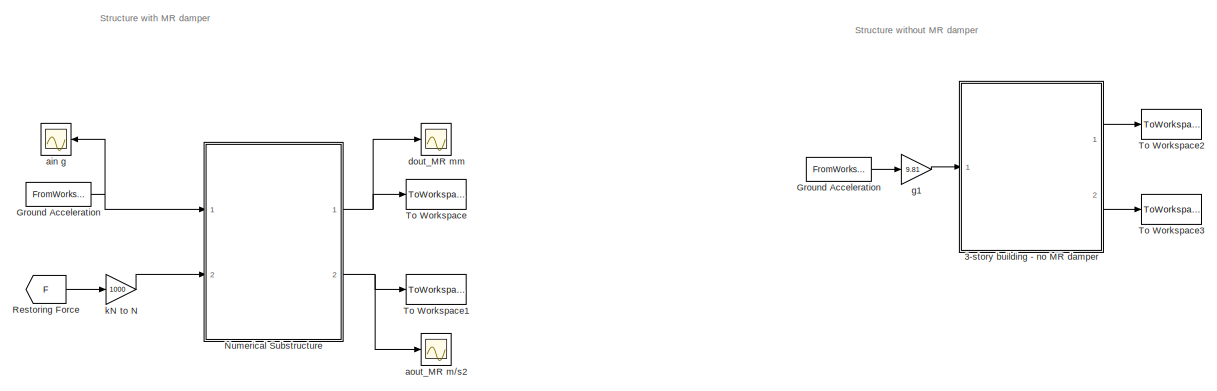
[diagram: root canvas - part 1/2, full width, middle band]
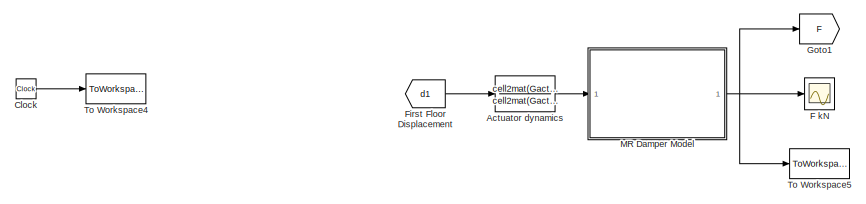
[diagram: root canvas - part 2/2, bottom left region]
MODEL slx_c075b33c874c
KIND model
CONFIG AbsTol = auto
CONFIG EnableMultiTasking = off
CONFIG FixedStep = dt
CONFIG MaxStep = auto
CONFIG MinStep = auto
CONFIG RelTol = 1e-5
CONFIG SampleTimeConstraint = Unconstrained
CONFIG Solver = ode8
CONFIG SolverName = ode8
CONFIG StartTime = 0.0
CONFIG StopTime = 20
BLOCK [FromWorkspace]  Ground Acceleration
  SampleTime = 1/200
  VariableName = gmotion
  ZeroCross = on
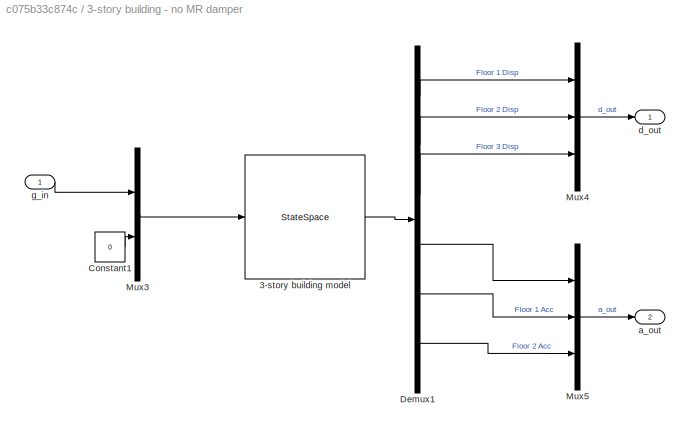
BLOCK [SubSystem] 3-story building - no MR damper
  Ports = [1, 2]
  RequestExecContextInheritance = off
BLOCK [StateSpace] 3-story building - no MR damper/ 3-story building model
  A = bdg.A
  B = bdg.B
  C = bdg.C
  D = bdg.D
  InitialCondition = 0
  Ports = [1, 1]
BLOCK [Constant] 3-story building - no MR damper/Constant1
  Value = 0
BLOCK [Demux] 3-story building - no MR damper/Demux1
  DisplayOption = bar
  Outputs = 6
  Ports = [1, 6]
BLOCK [Mux] 3-story building - no MR damper/Mux3
  DisplayOption = bar
  Inputs = 2
  Ports = [2, 1]
BLOCK [Mux] 3-story building - no MR damper/Mux4
  DisplayOption = bar
  Inputs = 3
  Ports = [3, 1]
BLOCK [Mux] 3-story building - no MR damper/Mux5
  DisplayOption = bar
  Inputs = 3
  Ports = [3, 1]
BLOCK [Outport] 3-story building - no MR damper/a_out
  IconDisplay = Port number
  Port = 2
BLOCK [Outport] 3-story building - no MR damper/d_out
  IconDisplay = Port number
BLOCK [Inport] 3-story building - no MR damper/g_in
  IconDisplay = Port number
BLOCK [TransferFcn] Actuator dynamics
  Denominator = cell2mat(Gact.denominator)
  Numerator = cell2mat(Gact.numerator)
BLOCK [Clock] Clock
BLOCK [Scope] F kN
  Floating = off
  NumInputPorts = 1
  Ports = [1]
  ScopeSpecificationString = Simulink.scopes.TimeScopeBlockCfg('CurrentConfiguration', extmgr.ConfigurationSet(extmgr.Configuration('Core','General UI',true),extmgr.Configuration('Core','Source UI',true),extmgr.Configuration('Sources','WiredSimulink',true),extmgr.Configuration('Visuals','Time Domain',true,'SerializedDisplays',{struct('MinYLimReal','-155.95182','MaxYLimReal','153.81082','YLabelReal','','MinYLimMag',' 0.00000',...<+1412ch>
BLOCK [From] First Floor Displacement
  GotoTag = d1
BLOCK [Goto] Goto1
  GotoTag = F
BLOCK [FromWorkspace] Ground Acceleration
  SampleTime = 1/200
  VariableName = gmotion
  ZeroCross = on
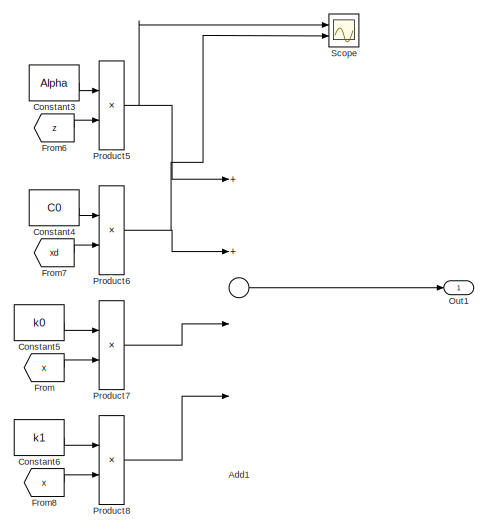
[diagram: MR Damper Model - part 1/2, right side, full height]
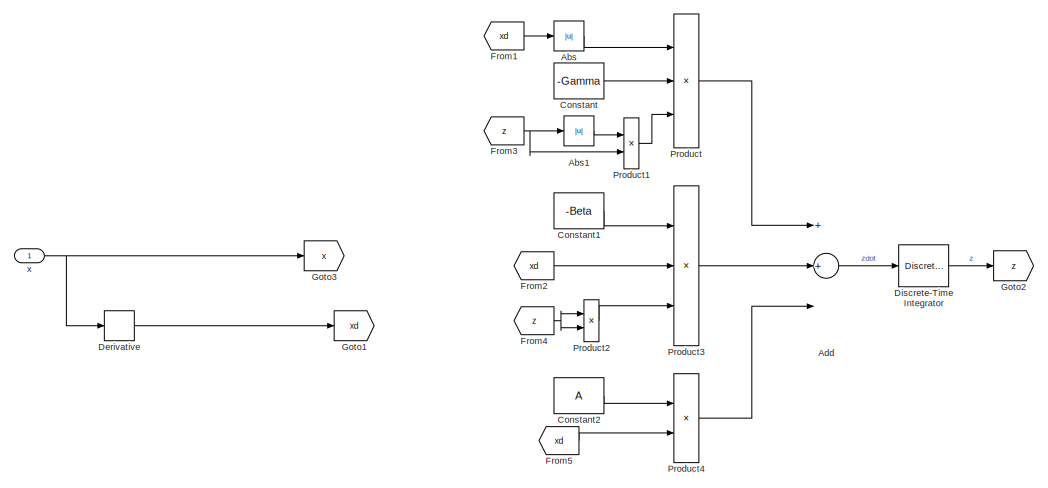
[diagram: MR Damper Model - part 2/2, left side, full height]
BLOCK [SubSystem] MR Damper Model
  Ports = [1, 1]
  RequestExecContextInheritance = off
BLOCK [Abs] MR Damper Model/Abs
  SaturateOnIntegerOverflow = off
BLOCK [Abs] MR Damper Model/Abs1
  SaturateOnIntegerOverflow = off
BLOCK [Sum] MR Damper Model/Add
  InputSameDT = off
  Inputs = 3
  OutDataTypeStr = Inherit: Inherit via internal rule
  Ports = [3, 1]
  SaturateOnIntegerOverflow = off
BLOCK [Sum] MR Damper Model/Add1
  InputSameDT = off
  Inputs = 4
  OutDataTypeStr = Inherit: Inherit via internal rule
  Ports = [4, 1]
  SaturateOnIntegerOverflow = off
BLOCK [Constant] MR Damper Model/Constant
  Value = -Gamma
BLOCK [Constant] MR Damper Model/Constant1
  Value = -Beta
BLOCK [Constant] MR Damper Model/Constant2
  Value = A
BLOCK [Constant] MR Damper Model/Constant3
  Value = Alpha
BLOCK [Constant] MR Damper Model/Constant4
  Value = C0
BLOCK [Constant] MR Damper Model/Constant5
  Value = k0
BLOCK [Constant] MR Damper Model/Constant6
  Value = k1
BLOCK [Derivative] MR Damper Model/Derivative
BLOCK [DiscreteIntegrator] MR Damper Model/Discrete-Time Integrator
  ICPrevOutput = DiscIntNeverNeededParam
  ICPrevScaledInput = DiscIntNeverNeededParam
  InitialConditionSetting = Auto
  IntegratorMethod = Integration: Trapezoidal
  Ports = [1, 1]
  SampleTime = dt
BLOCK [From] MR Damper Model/From
  GotoTag = x
BLOCK [From] MR Damper Model/From1
  GotoTag = xd
BLOCK [From] MR Damper Model/From2
  GotoTag = xd
BLOCK [From] MR Damper Model/From3
  GotoTag = z
BLOCK [From] MR Damper Model/From4
  GotoTag = z
BLOCK [From] MR Damper Model/From5
  GotoTag = xd
BLOCK [From] MR Damper Model/From6
  GotoTag = z
BLOCK [From] MR Damper Model/From7
  GotoTag = xd
BLOCK [From] MR Damper Model/From8
  GotoTag = x
BLOCK [Goto] MR Damper Model/Goto1
  GotoTag = xd
BLOCK [Goto] MR Damper Model/Goto2
  GotoTag = z
BLOCK [Goto] MR Damper Model/Goto3
  GotoTag = x
BLOCK [Outport] MR Damper Model/Out1
  IconDisplay = Port number
BLOCK [Product] MR Damper Model/Product
  InputSameDT = off
  Inputs = 3
  OutDataTypeStr = Inherit: Inherit via internal rule
  Ports = [3, 1]
  RndMeth = Floor
  SaturateOnIntegerOverflow = off
BLOCK [Product] MR Damper Model/Product1
  InputSameDT = off
  OutDataTypeStr = Inherit: Inherit via internal rule
  Ports = [2, 1]
  RndMeth = Floor
  SaturateOnIntegerOverflow = off
BLOCK [Product] MR Damper Model/Product2
  InputSameDT = off
  OutDataTypeStr = Inherit: Inherit via internal rule
  Ports = [2, 1]
  RndMeth = Floor
  SaturateOnIntegerOverflow = off
BLOCK [Product] MR Damper Model/Product3
  InputSameDT = off
  Inputs = 3
  OutDataTypeStr = Inherit: Inherit via internal rule
  Ports = [3, 1]
  RndMeth = Floor
  SaturateOnIntegerOverflow = off
BLOCK [Product] MR Damper Model/Product4
  InputSameDT = off
  OutDataTypeStr = Inherit: Inherit via internal rule
  Ports = [2, 1]
  RndMeth = Floor
  SaturateOnIntegerOverflow = off
BLOCK [Product] MR Damper Model/Product5
  InputSameDT = off
  OutDataTypeStr = Inherit: Inherit via internal rule
  Ports = [2, 1]
  RndMeth = Floor
  SaturateOnIntegerOverflow = off
BLOCK [Product] MR Damper Model/Product6
  InputSameDT = off
  OutDataTypeStr = Inherit: Inherit via internal rule
  Ports = [2, 1]
  RndMeth = Floor
  SaturateOnIntegerOverflow = off
BLOCK [Product] MR Damper Model/Product7
  InputSameDT = off
  OutDataTypeStr = Inherit: Inherit via internal rule
  Ports = [2, 1]
  RndMeth = Floor
  SaturateOnIntegerOverflow = off
BLOCK [Product] MR Damper Model/Product8
  InputSameDT = off
  OutDataTypeStr = Inherit: Inherit via internal rule
  Ports = [2, 1]
  RndMeth = Floor
  SaturateOnIntegerOverflow = off
BLOCK [Scope] MR Damper Model/Scope
  Floating = off
  NumInputPorts = 2
  Ports = [2]
  ScopeSpecificationString = Simulink.scopes.TimeScopeBlockCfg('CurrentConfiguration', extmgr.ConfigurationSet(extmgr.Configuration('Core','General UI',true),extmgr.Configuration('Core','Source UI',true),extmgr.Configuration('Sources','WiredSimulink',true,'DataLoggingVariableName','ScopeData2'),extmgr.Configuration('Visuals','Time Domain',true,'SerializedDisplays',{struct('MinYLimReal','-6.90732','MaxYLimReal','6.53454','YLab...<+1397ch>
BLOCK [Inport] MR Damper Model/x
  IconDisplay = Port number
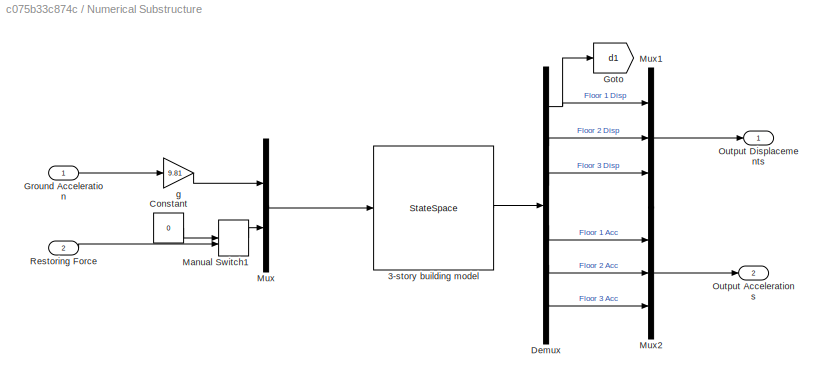
BLOCK [SubSystem] Numerical Substructure
  Ports = [2, 2]
  RequestExecContextInheritance = off
BLOCK [StateSpace] Numerical Substructure/3-story building model
  A = bdg.A
  B = bdg.B
  C = bdg.C
  D = bdg.D
  InitialCondition = 0
  Ports = [1, 1]
BLOCK [Constant] Numerical Substructure/Constant
  Value = 0
BLOCK [Demux] Numerical Substructure/Demux
  DisplayOption = bar
  Outputs = 6
  Ports = [1, 6]
BLOCK [Goto] Numerical Substructure/Goto
  GotoTag = d1
BLOCK [Inport] Numerical Substructure/Ground Acceleration
  IconDisplay = Port number
BLOCK [ManualSwitch] Numerical Substructure/Manual Switch1
  CurrentSetting = 0
BLOCK [Mux] Numerical Substructure/Mux
  DisplayOption = bar
  Inputs = 2
  Ports = [2, 1]
BLOCK [Mux] Numerical Substructure/Mux1
  DisplayOption = bar
  Inputs = 3
  Ports = [3, 1]
BLOCK [Mux] Numerical Substructure/Mux2
  DisplayOption = bar
  Inputs = 3
  Ports = [3, 1]
BLOCK [Outport] Numerical Substructure/Output Accelerations
  IconDisplay = Port number
  Port = 2
BLOCK [Outport] Numerical Substructure/Output Displacements
  IconDisplay = Port number
BLOCK [Inport] Numerical Substructure/Restoring Force
  IconDisplay = Port number
  Port = 2
BLOCK [Gain] Numerical Substructure/g
  Gain = 9.81
  OutDataTypeStr = Inherit: Inherit via internal rule
  ParamDataTypeStr = Inherit: Inherit via internal rule
  SaturateOnIntegerOverflow = off
BLOCK [From] Restoring Force
  GotoTag = F
BLOCK [ToWorkspace] To Workspace
  FixptAsFi = on
  MaxDataPoints = inf
  Ports = [1]
  SampleTime = dt
  VariableName = dout_RTHS
BLOCK [ToWorkspace] To Workspace1
  FixptAsFi = on
  MaxDataPoints = inf
  Ports = [1]
  SampleTime = dt
  VariableName = aout_RTHS
BLOCK [ToWorkspace] To Workspace2
  FixptAsFi = on
  MaxDataPoints = inf
  Ports = [1]
  SampleTime = dt
  VariableName = dout
BLOCK [ToWorkspace] To Workspace3
  FixptAsFi = on
  MaxDataPoints = inf
  Ports = [1]
  SampleTime = dt
  VariableName = aout
BLOCK [ToWorkspace] To Workspace4
  FixptAsFi = on
  MaxDataPoints = inf
  Ports = [1]
  SampleTime = dt
  VariableName = time
BLOCK [ToWorkspace] To Workspace5
  FixptAsFi = on
  MaxDataPoints = inf
  Ports = [1]
  SampleTime = dt
  VariableName = Fout_RTHS
BLOCK [Scope] ain g
  Floating = off
  NumInputPorts = 1
  Ports = [1]
  ScopeSpecificationString = Simulink.scopes.TimeScopeBlockCfg('CurrentConfiguration', extmgr.ConfigurationSet(extmgr.Configuration('Core','General UI',true),extmgr.Configuration('Core','Source UI',true),extmgr.Configuration('Sources','WiredSimulink',true,'DataLoggingVariableName','ScopeData3'),extmgr.Configuration('Visuals','Time Domain',true,'SerializedDisplays',{struct('MinYLimReal','-4.16531','MaxYLimReal','7.11331','YLab...<+1360ch>
BLOCK [Scope] aout_MR m//s2
  Floating = off
  NumInputPorts = 1
  Ports = [1]
  ScopeSpecificationString = Simulink.scopes.TimeScopeBlockCfg('CurrentConfiguration', extmgr.ConfigurationSet(extmgr.Configuration('Core','General UI',true),extmgr.Configuration('Core','Source UI',true),extmgr.Configuration('Sources','WiredSimulink',true,'DataLoggingVariableName','ScopeData2'),extmgr.Configuration('Visuals','Time Domain',true,'SerializedDisplays',{struct('MinYLimReal','-1.93104','MaxYLimReal','1.89073','YLab...<+1466ch>
BLOCK [Scope] dout_MR  mm
  Floating = off
  NumInputPorts = 1
  Ports = [1]
  ScopeSpecificationString = Simulink.scopes.TimeScopeBlockCfg('CurrentConfiguration', extmgr.ConfigurationSet(extmgr.Configuration('Core','General UI',true),extmgr.Configuration('Core','Source UI',true),extmgr.Configuration('Sources','WiredSimulink',true,'DataLoggingVariableName','ScopeData1'),extmgr.Configuration('Visuals','Time Domain',true,'SerializedDisplays',{struct('MinYLimReal','-43.45378','MaxYLimReal','42.21651','YL...<+1482ch>
BLOCK [Gain] g1
  Gain = 9.81
  OutDataTypeStr = Inherit: Inherit via internal rule
  ParamDataTypeStr = Inherit: Inherit via internal rule
  SaturateOnIntegerOverflow = off
BLOCK [Gain] kN to N
  Gain = 1000
  OutDataTypeStr = Inherit: Inherit via internal rule
  ParamDataTypeStr = Inherit: Inherit via internal rule
  SaturateOnIntegerOverflow = off
ANNOTATION (root): Structure with MR damper
ANNOTATION (root): Structure without MR damper
LINE  Ground Acceleration:1 -> g1:1
LINE 3-story building - no MR damper/ 3-story building model:1 -> 3-story building - no MR damper/Demux1:1
LINE 3-story building - no MR damper/Constant1:1 -> 3-story building - no MR damper/Mux3:2
LINE 3-story building - no MR damper/Demux1:1 -> 3-story building - no MR damper/Mux4:1
LINE 3-story building - no MR damper/Demux1:2 -> 3-story building - no MR damper/Mux4:2
LINE 3-story building - no MR damper/Demux1:3 -> 3-story building - no MR damper/Mux4:3
LINE 3-story building - no MR damper/Demux1:4 -> 3-story building - no MR damper/Mux5:1
LINE 3-story building - no MR damper/Demux1:5 -> 3-story building - no MR damper/Mux5:2
LINE 3-story building - no MR damper/Demux1:6 -> 3-story building - no MR damper/Mux5:3
LINE 3-story building - no MR damper/Mux3:1 -> 3-story building - no MR damper/ 3-story building model:1
LINE 3-story building - no MR damper/Mux4:1 -> 3-story building - no MR damper/d_out:1
LINE 3-story building - no MR damper/Mux5:1 -> 3-story building - no MR damper/a_out:1
LINE 3-story building - no MR damper/g_in:1 -> 3-story building - no MR damper/Mux3:1
LINE 3-story building - no MR damper:1 -> To Workspace2:1
LINE 3-story building - no MR damper:2 -> To Workspace3:1
LINE Actuator dynamics:1 -> MR Damper Model:1
LINE Clock:1 -> To Workspace4:1
LINE First Floor Displacement:1 -> Actuator dynamics:1
NET Ground Acceleration:1 -> Numerical Substructure:1, ain g:1
LINE MR Damper Model/Abs1:1 -> MR Damper Model/Product1:1
LINE MR Damper Model/Abs:1 -> MR Damper Model/Product:1
LINE MR Damper Model/Add1:1 -> MR Damper Model/Out1:1
LINE MR Damper Model/Add:1 -> MR Damper Model/Discrete-Time Integrator:1
LINE MR Damper Model/Constant1:1 -> MR Damper Model/Product3:1
LINE MR Damper Model/Constant2:1 -> MR Damper Model/Product4:1
LINE MR Damper Model/Constant3:1 -> MR Damper Model/Product5:1
LINE MR Damper Model/Constant4:1 -> MR Damper Model/Product6:1
LINE MR Damper Model/Constant5:1 -> MR Damper Model/Product7:1
LINE MR Damper Model/Constant6:1 -> MR Damper Model/Product8:1
LINE MR Damper Model/Constant:1 -> MR Damper Model/Product:2
LINE MR Damper Model/Derivative:1 -> MR Damper Model/Goto1:1
LINE MR Damper Model/Discrete-Time Integrator:1 -> MR Damper Model/Goto2:1
LINE MR Damper Model/From1:1 -> MR Damper Model/Abs:1
LINE MR Damper Model/From2:1 -> MR Damper Model/Product3:2
NET MR Damper Model/From3:1 -> MR Damper Model/Abs1:1, MR Damper Model/Product1:2
NET MR Damper Model/From4:1 -> MR Damper Model/Product2:1, MR Damper Model/Product2:2
LINE MR Damper Model/From5:1 -> MR Damper Model/Product4:2
LINE MR Damper Model/From6:1 -> MR Damper Model/Product5:2
LINE MR Damper Model/From7:1 -> MR Damper Model/Product6:2
LINE MR Damper Model/From8:1 -> MR Damper Model/Product8:2
LINE MR Damper Model/From:1 -> MR Damper Model/Product7:2
LINE MR Damper Model/Product1:1 -> MR Damper Model/Product:3
LINE MR Damper Model/Product2:1 -> MR Damper Model/Product3:3
LINE MR Damper Model/Product3:1 -> MR Damper Model/Add:2
LINE MR Damper Model/Product4:1 -> MR Damper Model/Add:3
NET MR Damper Model/Product5:1 -> MR Damper Model/Add1:1, MR Damper Model/Scope:1
NET MR Damper Model/Product6:1 -> MR Damper Model/Add1:2, MR Damper Model/Scope:2
LINE MR Damper Model/Product7:1 -> MR Damper Model/Add1:3
LINE MR Damper Model/Product8:1 -> MR Damper Model/Add1:4
LINE MR Damper Model/Product:1 -> MR Damper Model/Add:1
NET MR Damper Model/x:1 -> MR Damper Model/Derivative:1, MR Damper Model/Goto3:1
NET MR Damper Model:1 -> F kN:1, Goto1:1, To Workspace5:1
LINE Numerical Substructure/3-story building model:1 -> Numerical Substructure/Demux:1
LINE Numerical Substructure/Constant:1 -> Numerical Substructure/Manual Switch1:1
NET Numerical Substructure/Demux:1 -> Numerical Substructure/Goto:1, Numerical Substructure/Mux1:1
LINE Numerical Substructure/Demux:2 -> Numerical Substructure/Mux1:2
LINE Numerical Substructure/Demux:3 -> Numerical Substructure/Mux1:3
LINE Numerical Substructure/Demux:4 -> Numerical Substructure/Mux2:1
LINE Numerical Substructure/Demux:5 -> Numerical Substructure/Mux2:2
LINE Numerical Substructure/Demux:6 -> Numerical Substructure/Mux2:3
LINE Numerical Substructure/Ground Acceleration:1 -> Numerical Substructure/g:1
LINE Numerical Substructure/Manual Switch1:1 -> Numerical Substructure/Mux:2
LINE Numerical Substructure/Mux1:1 -> Numerical Substructure/Output Displacements:1
LINE Numerical Substructure/Mux2:1 -> Numerical Substructure/Output Accelerations:1
LINE Numerical Substructure/Mux:1 -> Numerical Substructure/3-story building model:1
LINE Numerical Substructure/Restoring Force:1 -> Numerical Substructure/Manual Switch1:2
LINE Numerical Substructure/g:1 -> Numerical Substructure/Mux:1
NET Numerical Substructure:1 -> To Workspace:1, dout_MR  mm:1
NET Numerical Substructure:2 -> To Workspace1:1, aout_MR m//s2:1
LINE Restoring Force:1 -> kN to N:1
LINE g1:1 -> 3-story building - no MR damper:1
LINE kN to N:1 -> Numerical Substructure:2
note: NET lines group one-source signal fan-out (src -> all destinations, sorted); 1:1 wires keep LINE
